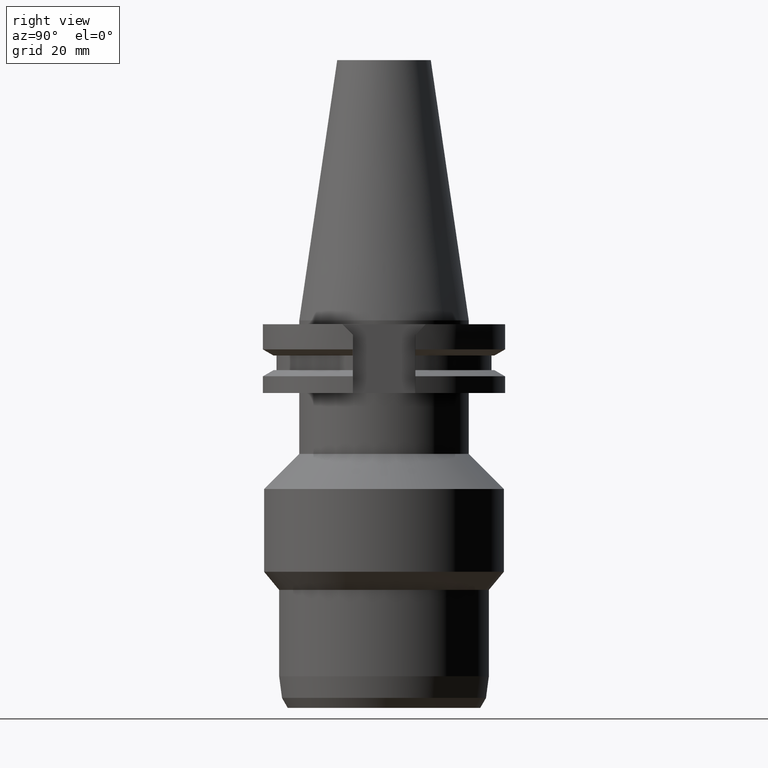
[diagram: clean part render]
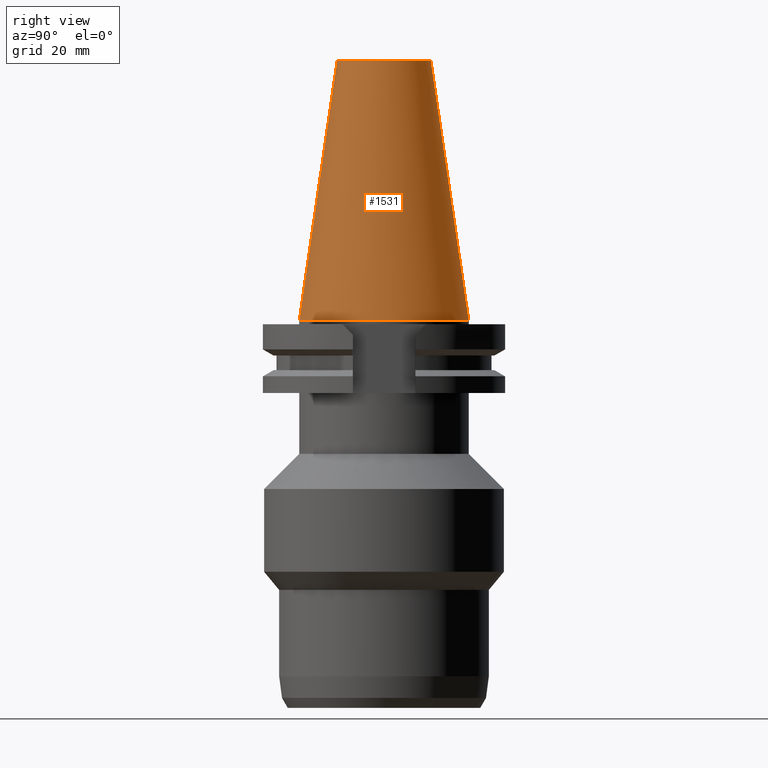
[diagram: same view with one face highlighted and labeled with its STEP entity id]
A machine part, right view. The second image highlights one B-rep face of the part: STEP entity #1531.
In plain terms, the highlighted conical surface has half-angle 8.297 deg.
Its self-contained STEP definition (entity closure, byte-faithful):
#17=DIRECTION('',(0.E0,1.443069799457E-1,-9.895329683942E-1));
#18=VECTOR('',#17,6.897193138573E1);
#19=CARTESIAN_POINT('',(0.E0,1.227186888070E1,6.825E1));
#20=LINE('',#19,#18);
#25=CARTESIAN_POINT('',(0.E0,1.642557519356E-14,-3.126388037344E-13));
#26=DIRECTION('',(0.E0,0.E0,-1.E0));
#27=DIRECTION('',(0.E0,1.E0,0.E0));
#28=AXIS2_PLACEMENT_3D('',#25,#26,#27);
#33=DIRECTION('',(0.E0,-1.443069799457E-1,-9.895329683942E-1));
#34=VECTOR('',#33,6.897193138573E1);
#35=CARTESIAN_POINT('',(0.E0,-1.227186888070E1,6.825E1));
#36=LINE('',#35,#34);
#56=CARTESIAN_POINT('',(0.E0,1.642557519356E-14,6.825E1));
#57=DIRECTION('',(0.E0,0.E0,-1.E0));
#58=DIRECTION('',(0.E0,1.E0,0.E0));
#59=AXIS2_PLACEMENT_3D('',#56,#57,#58);
#1302=CARTESIAN_POINT('',(0.E0,1.227186888070E1,6.825E1));
#1303=CARTESIAN_POINT('',(0.E0,2.2225E1,-2.131628207280E-13));
#1304=VERTEX_POINT('',#1302);
#1305=VERTEX_POINT('',#1303);
#1306=CARTESIAN_POINT('',(0.E0,-2.2225E1,-3.126388037344E-13));
#1307=VERTEX_POINT('',#1306);
#1308=CARTESIAN_POINT('',(0.E0,-1.227186888070E1,6.825E1));
#1309=VERTEX_POINT('',#1308);
#1516=CARTESIAN_POINT('',(0.E0,1.642557519356E-14,3.4125E1));
#1517=DIRECTION('',(0.E0,0.E0,-1.E0));
#1518=DIRECTION('',(0.E0,-1.E0,0.E0));
#1519=AXIS2_PLACEMENT_3D('',#1516,#1517,#1518);
#1520=CONICAL_SURFACE('',#1519,1.724843444035E1,8.29715E0);
#1522=ORIENTED_EDGE('',*,*,#1521,.T.);
#1524=ORIENTED_EDGE('',*,*,#1523,.T.);
#1526=ORIENTED_EDGE('',*,*,#1525,.F.);
#1528=ORIENTED_EDGE('',*,*,#1527,.F.);
#1529=EDGE_LOOP('',(#1522,#1524,#1526,#1528));
#1530=FACE_OUTER_BOUND('',#1529,.F.);
#29=CIRCLE('',#28,2.2225E1);
#60=CIRCLE('',#59,1.227186888070E1);
#1521=EDGE_CURVE('',#1304,#1305,#20,.T.);
#1523=EDGE_CURVE('',#1305,#1307,#29,.T.);
#1525=EDGE_CURVE('',#1309,#1307,#36,.T.);
#1527=EDGE_CURVE('',#1304,#1309,#60,.T.);
#1531=ADVANCED_FACE('',(#1530),#1520,.T.);